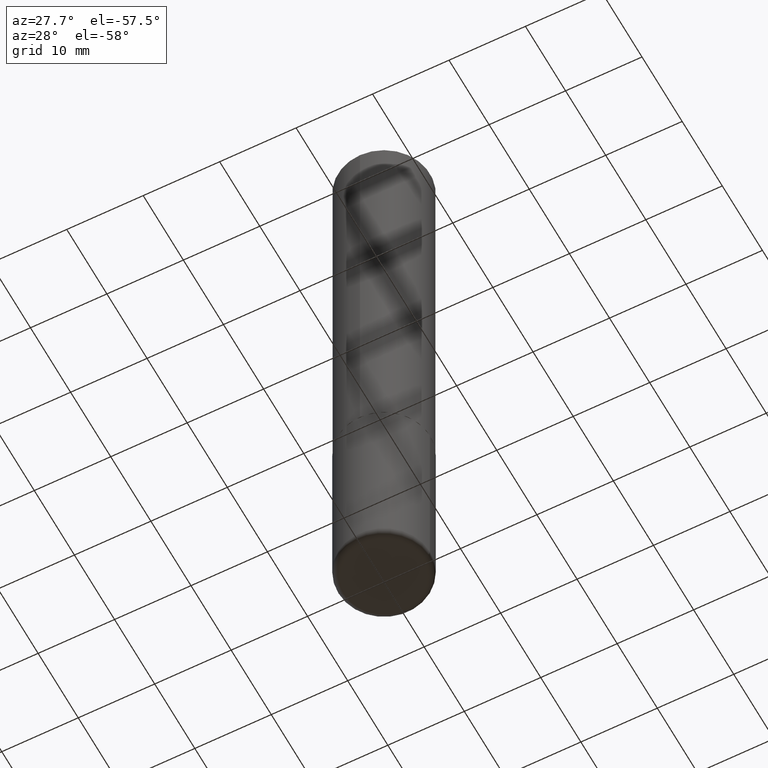
[diagram: clean part render]
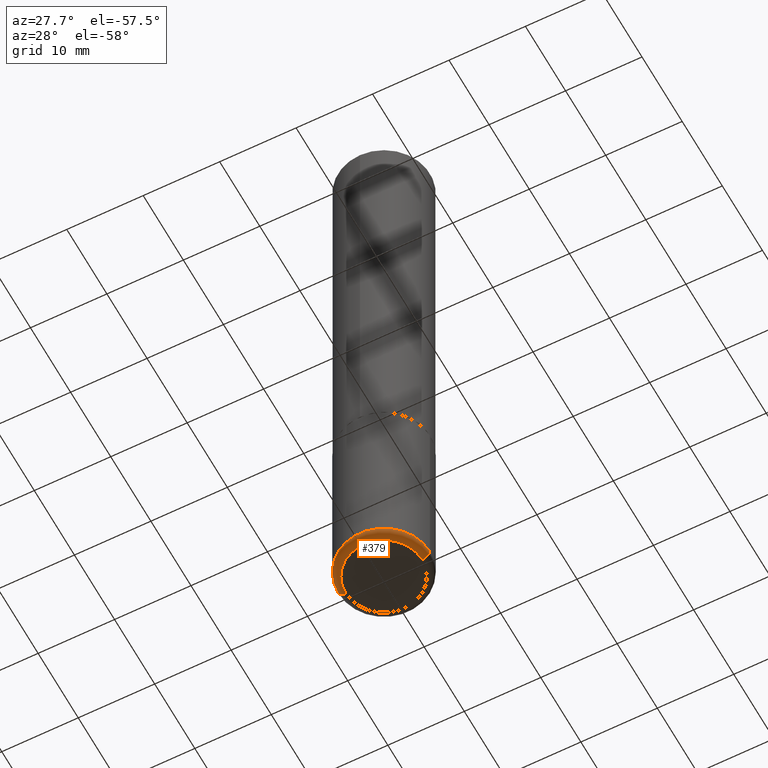
[diagram: same view with one face highlighted and labeled with its STEP entity id]
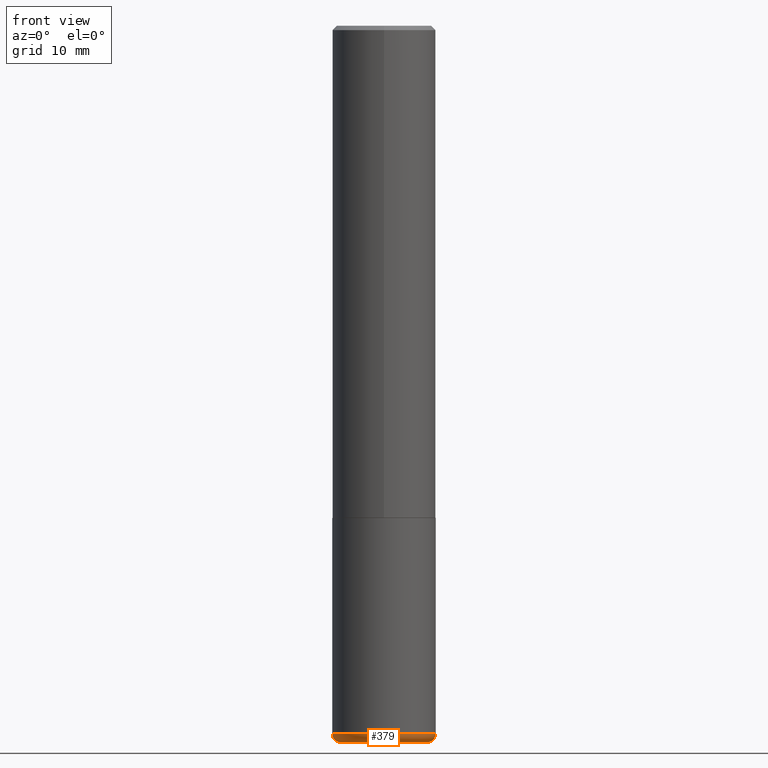
[diagram: same view with one face highlighted and labeled with its STEP entity id]
A machine part, auxiliary view. The second image highlights one B-rep face of the part: STEP entity #379.
A second angle (front view) of the same face is appended — the face is thin or edge-on in the first view.
In plain terms, the highlighted toroidal blend (fillet) surface has major radius 4.9987 mm and minor (blend) radius 1.0008 mm.
Its self-contained STEP definition (entity closure, byte-faithful):
#7 = CARTESIAN_POINT ( 'NONE',  ( 0.1968000000000000027, -1.264579626115598374E-14, -3.228299999999999947 ) ) ;
#31 = AXIS2_PLACEMENT_3D ( 'NONE', #7, #281, #249 ) ;
#39 = DIRECTION ( 'NONE',  ( -1.000000000000000000, 7.105427357601014480E-15, 0.000000000000000000 ) ) ;
#53 = AXIS2_PLACEMENT_3D ( 'NONE', #174, #243, #245 ) ;
#55 = CARTESIAN_POINT ( 'NONE',  ( -0.2362000000000001321, -9.593247264321970832E-15, -3.228299999999999947 ) ) ;
#64 = CARTESIAN_POINT ( 'NONE',  ( 0.2362000000000001321, -1.292092499065682533E-14, -3.228299999999999947 ) ) ;
#71 = DIRECTION ( 'NONE',  ( 1.000000000000000000, -6.982962677686265922E-15, 0.000000000000000000 ) ) ;
#94 = VERTEX_POINT ( 'NONE', #320 ) ;
#110 = FACE_OUTER_BOUND ( 'NONE', #371, .T. ) ;
#112 = ORIENTED_EDGE ( 'NONE', *, *, #327, .F. ) ;
#135 = ORIENTED_EDGE ( 'NONE', *, *, #391, .F. ) ;
#142 = CIRCLE ( 'NONE', #53, 0.1968000000000000027 ) ;
#149 = DIRECTION ( 'NONE',  ( 7.105427357601001859E-15, 1.000000000000000000, -3.491481338843145583E-15 ) ) ;
#157 = VERTEX_POINT ( 'NONE', #64 ) ;
#166 = CIRCLE ( 'NONE', #418, 0.03940000000000033753 ) ;
#174 = CARTESIAN_POINT ( 'NONE',  ( 7.991058417971172834E-29, -1.140911357093774960E-14, -3.267700000000000937 ) ) ;
#186 = AXIS2_PLACEMENT_3D ( 'NONE', #329, #212, #71 ) ;
#207 = CARTESIAN_POINT ( 'NONE',  ( -0.1968000000000000027, -9.873201102211451027E-15, -3.228299999999999947 ) ) ;
#211 = DIRECTION ( 'NONE',  ( -2.445468806185136597E-29, 3.491481338843145583E-15, 1.000000000000000000 ) ) ;
#212 = DIRECTION ( 'NONE',  ( -2.445468806185136597E-29, 3.491481338843145583E-15, 1.000000000000000000 ) ) ;
#215 = VERTEX_POINT ( 'NONE', #55 ) ;
#217 = CARTESIAN_POINT ( 'NONE',  ( -0.1968000000000000027, -9.802006365641918959E-15, -3.267700000000000937 ) ) ;
#221 = AXIS2_PLACEMENT_3D ( 'NONE', #297, #211, #362 ) ;
#243 = DIRECTION ( 'NONE',  ( -2.445468806185136597E-29, 3.491481338843145583E-15, 1.000000000000000000 ) ) ;
#245 = DIRECTION ( 'NONE',  ( 1.000000000000000000, -6.982962677686261977E-15, 0.000000000000000000 ) ) ;
#249 = DIRECTION ( 'NONE',  ( 1.000000000000000000, -6.982962677686268288E-15, 0.000000000000000000 ) ) ;
#278 = ORIENTED_EDGE ( 'NONE', *, *, #365, .T. ) ;
#281 = DIRECTION ( 'NONE',  ( -6.982962677686266711E-15, -1.000000000000000000, 3.491481338843145583E-15 ) ) ;
#295 = CIRCLE ( 'NONE', #31, 0.03940000000000033753 ) ;
#297 = CARTESIAN_POINT ( 'NONE',  ( 7.894706947007477118E-29, -1.127154920618732880E-14, -3.228299999999999947 ) ) ;
#313 = ORIENTED_EDGE ( 'NONE', *, *, #411, .T. ) ;
#320 = CARTESIAN_POINT ( 'NONE',  ( 0.1968000000000000027, -1.278336062590640454E-14, -3.267700000000000937 ) ) ;
#327 = EDGE_CURVE ( 'NONE', #215, #157, #349, .T. ) ;
#329 = CARTESIAN_POINT ( 'NONE',  ( 7.894706947007477118E-29, -1.127154920618732880E-14, -3.228299999999999947 ) ) ;
#349 = CIRCLE ( 'NONE', #186, 0.2361999999999999655 ) ;
#362 = DIRECTION ( 'NONE',  ( 1.000000000000000000, -6.982962677686262766E-15, 4.883557194083112340E-29 ) ) ;
#365 = EDGE_CURVE ( 'NONE', #390, #94, #142, .T. ) ;
#371 = EDGE_LOOP ( 'NONE', ( #135, #278, #313, #112 ) ) ;
#379 = ADVANCED_FACE ( 'NONE', ( #110 ), #388, .T. ) ;
#388 = TOROIDAL_SURFACE ( 'NONE', #221, 0.1968000000000000027, 0.03940000000000031671 ) ;
#390 = VERTEX_POINT ( 'NONE', #217 ) ;
#391 = EDGE_CURVE ( 'NONE', #390, #215, #166, .T. ) ;
#411 = EDGE_CURVE ( 'NONE', #94, #157, #295, .T. ) ;
#418 = AXIS2_PLACEMENT_3D ( 'NONE', #207, #149, #39 ) ;